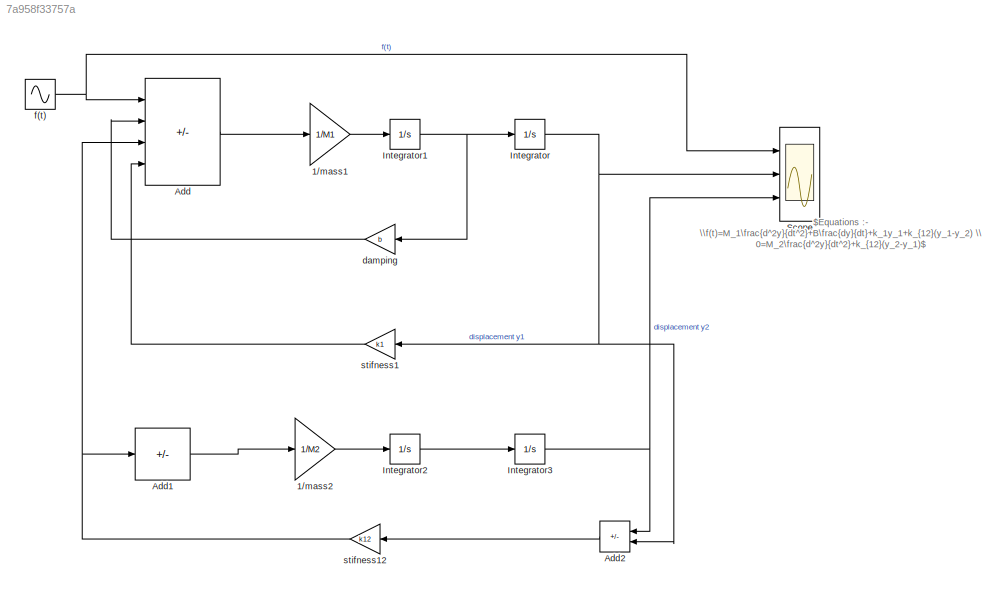
MODEL slx_7a958f33757a
KIND model
CONFIG AbsTol = auto
CONFIG EnableMultiTasking = off
CONFIG FixedStep = auto
CONFIG MaxStep = 0.01
CONFIG MinStep = auto
CONFIG RelTol = 1e-3
CONFIG SampleTimeConstraint = Unconstrained
CONFIG Solver = VariableStepAuto
CONFIG SolverName = VariableStepAuto
CONFIG StartTime = 0.0
CONFIG StopTime = 10
WORKSPACE source: mxarray member
WORKSPACE M1: Simulink.Parameter (value not decoded)
WORKSPACE M2: Simulink.Parameter (value not decoded)
WORKSPACE b: Simulink.Parameter (value not decoded)
WORKSPACE k1: Simulink.Parameter (value not decoded)
WORKSPACE k12: Simulink.Parameter (value not decoded)
BLOCK [Gain] 1//mass1
  Gain = 1/M1
BLOCK [Gain] 1//mass2
  Gain = 1/M2
BLOCK [Sum] Add
  IconShape = rectangular
  Inputs = +-+-
  Ports = [4, 1]
BLOCK [Sum] Add1
  IconShape = rectangular
  Inputs = -
  Ports = [1, 1]
BLOCK [Sum] Add2
  IconShape = rectangular
  Inputs = +-
  NameLocation = top
  Ports = [2, 1]
BLOCK [Integrator] Integrator
  Ports = [1, 1]
BLOCK [Integrator] Integrator1
  Ports = [1, 1]
BLOCK [Integrator] Integrator2
  Ports = [1, 1]
BLOCK [Integrator] Integrator3
  Ports = [1, 1]
BLOCK [Scope] Scope
  Floating = off
  NumInputPorts = 3
  Ports = [3]
  ScopeSpecificationString = Simulink.scopes.TimeScopeBlockCfg('CurrentConfiguration', extmgr.ConfigurationSet(extmgr.Configuration('Core','General UI',true),extmgr.Configuration('Core','Source UI',true),extmgr.Configuration('Sources','WiredSimulink',true),extmgr.Configuration('Visuals','Time Domain',true,'SerializedDisplays',{struct('MinYLimReal','-2.49998','MaxYLimReal','2.49999','YLabelReal','','MinYLimMag','0.00000','MaxY...<+2764ch>
BLOCK [Gain] damping
  Gain = b
  NameLocation = top
BLOCK [Sin] f(t)
  Amplitude = 2
  Frequency = 10
  Ports = [0, 1]
  SampleTime = 0
BLOCK [Gain] stifness1
  Gain = k1
  NameLocation = top
BLOCK [Gain] stifness12
  Gain = k12
  NameLocation = top
ANNOTATION (root): $Equations :- \\f(t)=M_1\frac{d^2y}{dt^2}+B\frac{dy}{dt}+k_1y_1+k_{12}(y_1-y_2) \\ 0=M_2\frac{d^2y}{dt^2}+k_{12}(y_2-y_1)$
LINE 1//mass1:1 -> Integrator1:1
LINE 1//mass2:1 -> Integrator2:1
LINE Add1:1 -> 1//mass2:1
LINE Add2:1 -> stifness12:1
LINE Add:1 -> 1//mass1:1
NET Integrator1:1 -> Integrator:1, damping:1
LINE Integrator2:1 -> Integrator3:1
NET Integrator3:1 -> Add2:1, Scope:3
NET Integrator:1 -> Add2:2, Scope:2, stifness1:1
LINE damping:1 -> Add:2
NET f(t):1 -> Add:1, Scope:1
NET stifness12:1 -> Add1:1, Add:3
LINE stifness1:1 -> Add:4
note: NET lines group one-source signal fan-out (src -> all destinations, sorted); 1:1 wires keep LINE
